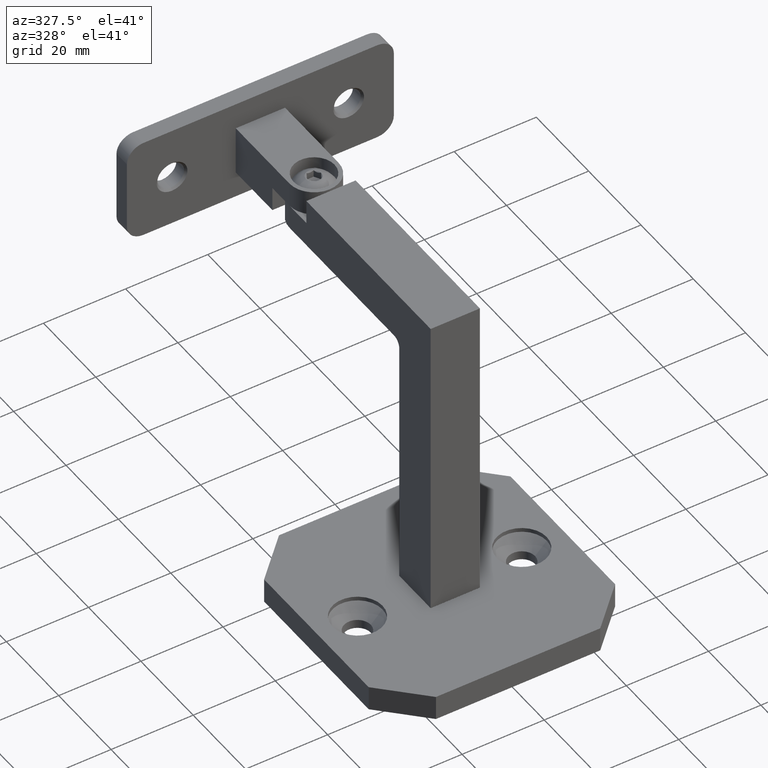
[diagram: clean part render]
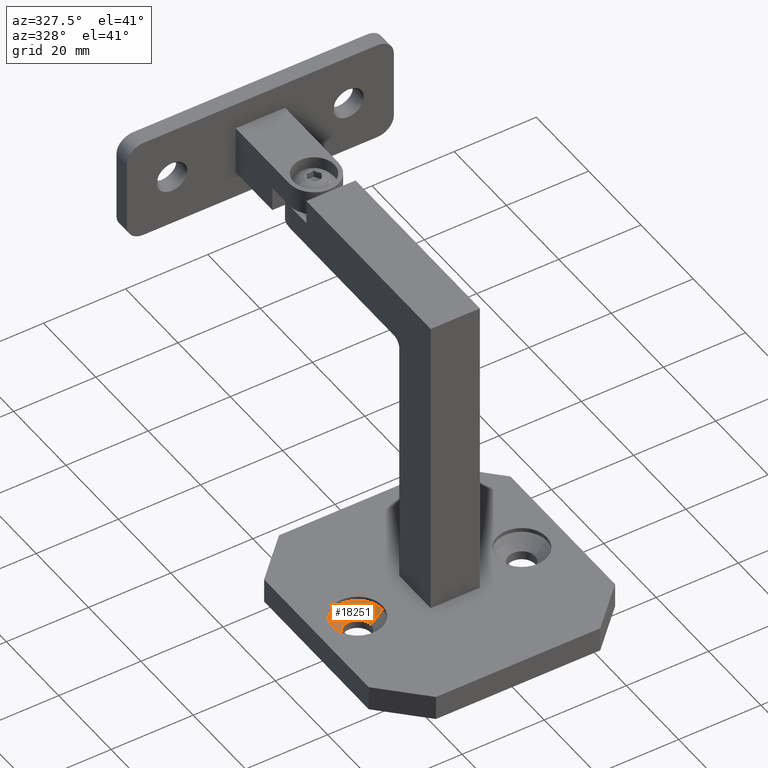
[diagram: same view with one face highlighted and labeled with its STEP entity id]
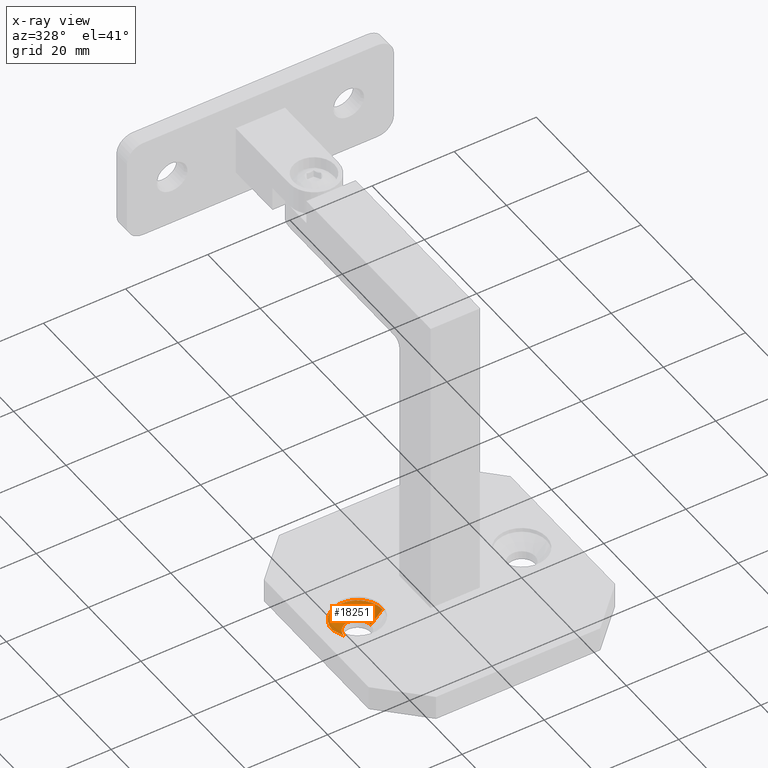
[diagram: x-ray of the same camera — body ghosted, the highlighted face saturated]
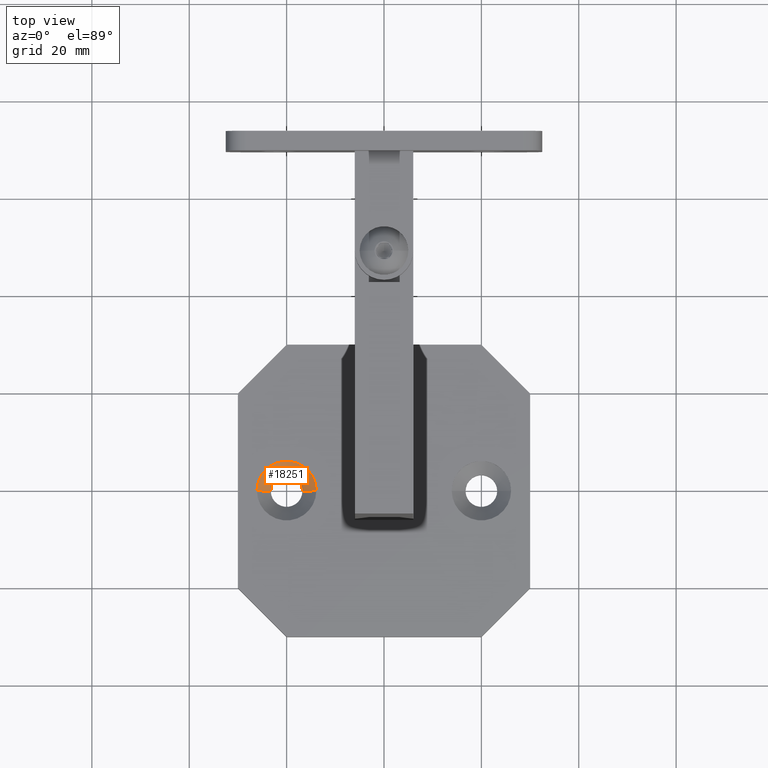
[diagram: same view with one face highlighted and labeled with its STEP entity id]
A machine part, auxiliary view. The second image highlights one B-rep face of the part: STEP entity #18251.
The next image is the same camera in x-ray: the body ghosted, the highlighted face saturated — about 0% of this face is hidden behind the body in this view.
A second angle (top view) of the same face is appended — the face is thin or edge-on in the first view.
In plain terms, the highlighted conical surface has half-angle 45 deg.
Its self-contained STEP definition (entity closure, byte-faithful):
#416 = CARTESIAN_POINT ( 'NONE',  ( -26.09999999999999787, 7.470345474798852320E-16, 2.000000000000000888 ) ) ;
#557 = CIRCLE ( 'NONE', #14136, 6.099999999999997868 ) ;
#2296 = CIRCLE ( 'NONE', #7187, 3.249999999999999556 ) ;
#2587 = CARTESIAN_POINT ( 'NONE',  ( -20.00000000000000000, 0.000000000000000000, 2.000000000000000888 ) ) ;
#3180 = DIRECTION ( 'NONE',  ( 0.7071067811865477948, 0.000000000000000000, 0.7071067811865473507 ) ) ;
#3274 = DIRECTION ( 'NONE',  ( -0.000000000000000000, -0.000000000000000000, 1.000000000000000000 ) ) ;
#3335 = DIRECTION ( 'NONE',  ( 1.000000000000000000, 0.000000000000000000, 0.000000000000000000 ) ) ;
#3789 = ORIENTED_EDGE ( 'NONE', *, *, #17408, .F. ) ;
#5354 = CARTESIAN_POINT ( 'NONE',  ( -20.00000000000000000, 0.000000000000000000, -0.8499999999999957589 ) ) ;
#6216 = ORIENTED_EDGE ( 'NONE', *, *, #20481, .T. ) ;
#6452 = CARTESIAN_POINT ( 'NONE',  ( -16.75000000000000000, 0.000000000000000000, -0.8499999999999957589 ) ) ;
#6530 = CARTESIAN_POINT ( 'NONE',  ( -26.09999999999999787, 7.470345474798852320E-16, 2.000000000000000888 ) ) ;
#6788 = EDGE_CURVE ( 'NONE', #21871, #18237, #557, .T. ) ;
#7187 = AXIS2_PLACEMENT_3D ( 'NONE', #5354, #3274, #14770 ) ;
#8103 = VECTOR ( 'NONE', #19940, 999.9999999999998863 ) ;
#8946 = AXIS2_PLACEMENT_3D ( 'NONE', #2587, #9894, #19541 ) ;
#9121 = VECTOR ( 'NONE', #3180, 999.9999999999998863 ) ;
#9894 = DIRECTION ( 'NONE',  ( -0.000000000000000000, -0.000000000000000000, 1.000000000000000000 ) ) ;
#10377 = EDGE_LOOP ( 'NONE', ( #21788, #3789, #6216, #21576 ) ) ;
#11012 = DIRECTION ( 'NONE',  ( -0.000000000000000000, -0.000000000000000000, 1.000000000000000000 ) ) ;
#12118 = EDGE_CURVE ( 'NONE', #13764, #18237, #22773, .T. ) ;
#13764 = VERTEX_POINT ( 'NONE', #23462 ) ;
#14136 = AXIS2_PLACEMENT_3D ( 'NONE', #24520, #11012, #3335 ) ;
#14770 = DIRECTION ( 'NONE',  ( 1.000000000000000000, 0.000000000000000000, 0.000000000000000000 ) ) ;
#15588 = VERTEX_POINT ( 'NONE', #6452 ) ;
#15944 = CARTESIAN_POINT ( 'NONE',  ( -13.90000000000000213, 0.000000000000000000, 2.000000000000000888 ) ) ;
#16299 = LINE ( 'NONE', #15944, #9121 ) ;
#17408 = EDGE_CURVE ( 'NONE', #15588, #13764, #2296, .T. ) ;
#18237 = VERTEX_POINT ( 'NONE', #416 ) ;
#18251 = ADVANCED_FACE ( 'NONE', ( #19384 ), #23848, .F. ) ;
#19384 = FACE_OUTER_BOUND ( 'NONE', #10377, .T. ) ;
#19541 = DIRECTION ( 'NONE',  ( 1.000000000000000000, 0.000000000000000000, 0.000000000000000000 ) ) ;
#19660 = CARTESIAN_POINT ( 'NONE',  ( -13.90000000000000213, 0.000000000000000000, 2.000000000000000888 ) ) ;
#19940 = DIRECTION ( 'NONE',  ( -0.7071067811865477948, 8.659560562354936556E-17, 0.7071067811865473507 ) ) ;
#20481 = EDGE_CURVE ( 'NONE', #15588, #21871, #16299, .T. ) ;
#21576 = ORIENTED_EDGE ( 'NONE', *, *, #6788, .T. ) ;
#21788 = ORIENTED_EDGE ( 'NONE', *, *, #12118, .F. ) ;
#21871 = VERTEX_POINT ( 'NONE', #19660 ) ;
#22773 = LINE ( 'NONE', #6530, #8103 ) ;
#23462 = CARTESIAN_POINT ( 'NONE',  ( -23.25000000000000000, 3.980102097228897245E-16, -0.8499999999999957589 ) ) ;
#23848 = CONICAL_SURFACE ( 'NONE', #8946, 6.099999999999997868, 0.7853981633974485010 ) ;
#24520 = CARTESIAN_POINT ( 'NONE',  ( -20.00000000000000000, 0.000000000000000000, 2.000000000000000888 ) ) ;